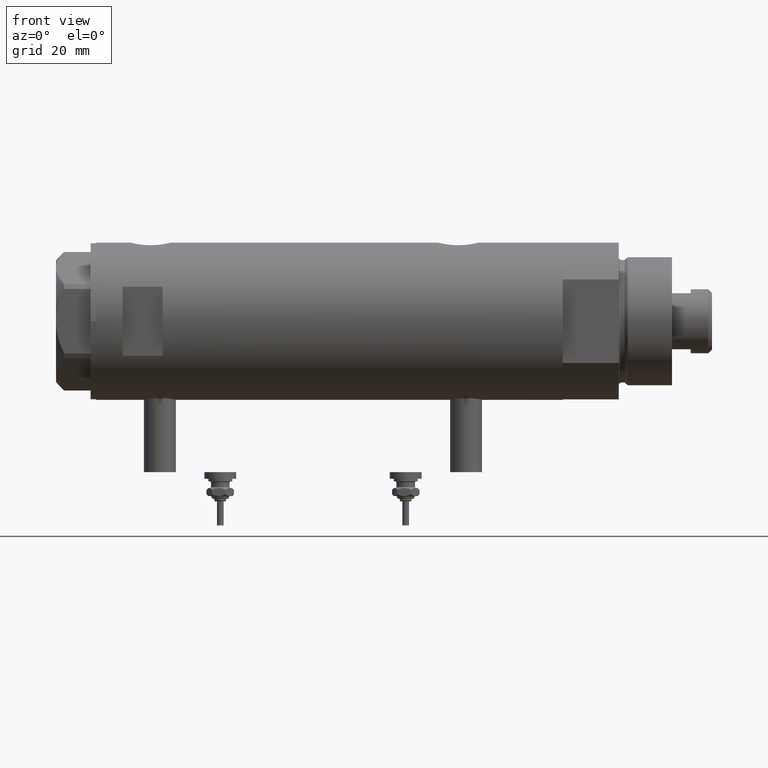
[diagram: clean part render]
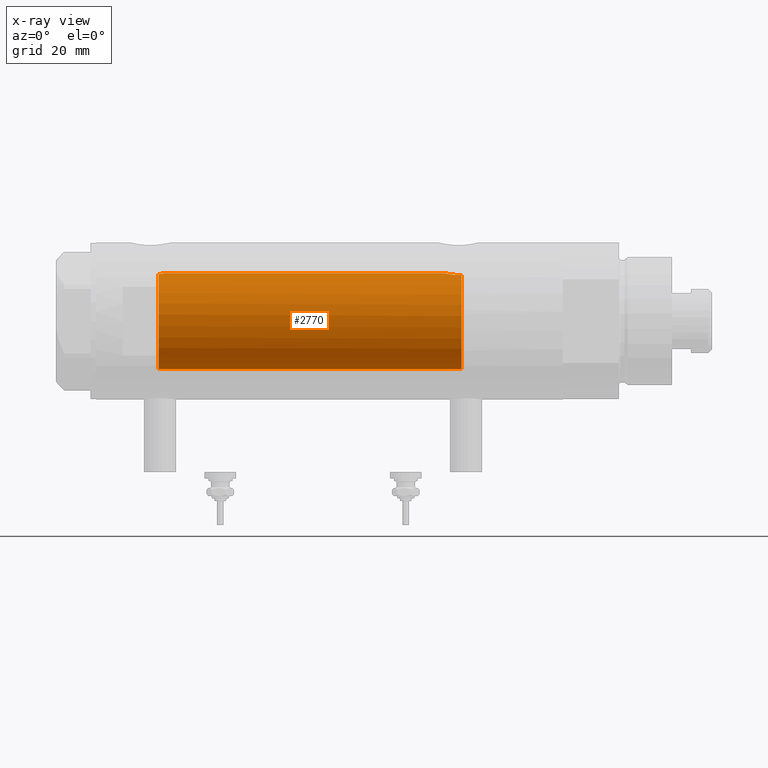
[diagram: x-ray — body ghosted, one internal face saturated and labeled with its STEP entity id]
A machine part, front view, then the same camera in x-ray: the body is ghosted and one INTERNAL B-rep face — a face not visible from any outside direction — is saturated and labeled: STEP entity #2770.
In plain terms, the highlighted cylindrical surface (partial cylindrical patch) has radius 18 mm, axis along (1, 0, -0).
Its self-contained STEP definition (entity closure, byte-faithful):
#33 = ORIENTED_EDGE ( 'NONE', *, *, #5619, .T. ) ;
#81 = AXIS2_PLACEMENT_3D ( 'NONE', #4233, #1489, #2428 ) ;
#200 = ORIENTED_EDGE ( 'NONE', *, *, #5802, .T. ) ;
#210 = DIRECTION ( 'NONE',  ( -0.000000000000000000, -0.000000000000000000, -1.000000000000000000 ) ) ;
#267 = CARTESIAN_POINT ( 'NONE',  ( 18.00000000000000000, 2.204364238465235428E-15, 87.59999999999998010 ) ) ;
#273 = CARTESIAN_POINT ( 'NONE',  ( 17.78501549309440222, -2.778062367771706231, -44.40196575702887571 ) ) ;
#297 = DIRECTION ( 'NONE',  ( -0.000000000000000000, -0.000000000000000000, -1.000000000000000000 ) ) ;
#300 = CARTESIAN_POINT ( 'NONE',  ( 17.97721305204034792, -0.9231636963562631637, -43.61982822371822266 ) ) ;
#327 = CARTESIAN_POINT ( 'NONE',  ( 18.00000000000000000, 5.958021437579254357E-16, -43.53499999999999659 ) ) ;
#372 = CARTESIAN_POINT ( 'NONE',  ( 17.58783030962034033, -3.829911878881809173, 64.09999999999999432 ) ) ;
#648 = CARTESIAN_POINT ( 'NONE',  ( 18.00000000000000000, 0.000000000000000000, 62.23499999999999233 ) ) ;
#721 = DIRECTION ( 'NONE',  ( 0.000000000000000000, 0.000000000000000000, 1.000000000000000000 ) ) ;
#722 = CARTESIAN_POINT ( 'NONE',  ( 17.32819690210315855, -4.871720223791778714, -48.13420793424216981 ) ) ;
#746 = VERTEX_POINT ( 'NONE', #4664 ) ;
#790 = CARTESIAN_POINT ( 'NONE',  ( 17.58783030962034033, -3.829911878881809173, 64.09999999999999432 ) ) ;
#807 = CARTESIAN_POINT ( 'NONE',  ( 17.41145422212636618, -4.568075757751900667, -46.68573299053986148 ) ) ;
#821 = CARTESIAN_POINT ( 'NONE',  ( 17.94467453319816030, -1.455166008437397629, 62.44318072553842569 ) ) ;
#840 = CARTESIAN_POINT ( 'NONE',  ( 17.99999999999999645, -0.1843597763241263676, -43.53499999999998948 ) ) ;
#1105 = ORIENTED_EDGE ( 'NONE', *, *, #1863, .T. ) ;
#1109 = ORIENTED_EDGE ( 'NONE', *, *, #4881, .F. ) ;
#1147 = B_SPLINE_CURVE_WITH_KNOTS ( 'NONE', 3,
 ( #2157, #5813, #3067, #722, #3570, #3520, #807, #4825, #3121, #5369, #1707, #5760, #273, #4860, #1259, #3036, #2103, #300, #4942, #5395, #840, #327 ),
 .UNSPECIFIED., .F., .F.,
 ( 4, 2, 2, 2, 2, 2, 2, 2, 2, 2, 4 ),
 ( 0.006434066725458738659, 0.007540005695425722881, 0.008645944665392707104, 0.009751883635359691327, 0.01085782260532667555, 0.01196376157529365977, 0.01251673106027715102, 0.01306970054526064226, 0.01417563951522762475, 0.01472860900021111773, 0.01528157848519461244 ),
 .UNSPECIFIED. ) ;
#1259 = CARTESIAN_POINT ( 'NONE',  ( 17.85233710017094566, -2.306965814323738595, -44.11276266371618249 ) ) ;
#1268 = CARTESIAN_POINT ( 'NONE',  ( 18.00000000000000355, -0.3730735969061040325, 62.23499999999998522 ) ) ;
#1298 = CARTESIAN_POINT ( 'NONE',  ( 17.91197612045793619, -1.808534151376000265, 62.56883769349537516 ) ) ;
#1489 = DIRECTION ( 'NONE',  ( 0.000000000000000000, 0.000000000000000000, -1.000000000000000000 ) ) ;
#1548 = CARTESIAN_POINT ( 'NONE',  ( -18.00000000000000000, 0.000000000000000000, -49.60000000000000853 ) ) ;
#1585 = DIRECTION ( 'NONE',  ( -1.000000000000000000, 0.000000000000000000, 0.000000000000000000 ) ) ;
#1608 = VERTEX_POINT ( 'NONE', #3180 ) ;
#1639 = ORIENTED_EDGE ( 'NONE', *, *, #3935, .F. ) ;
#1707 = CARTESIAN_POINT ( 'NONE',  ( 17.68752450041759516, -3.351772203450730458, -44.85493447381011833 ) ) ;
#1863 = EDGE_CURVE ( 'NONE', #746, #4908, #5886, .T. ) ;
#1999 = B_SPLINE_CURVE_WITH_KNOTS ( 'NONE', 3,
 ( #4895, #1268, #4922, #821, #1298, #3132, #2701, #2644, #5795, #790 ),
 .UNSPECIFIED., .F., .F.,
 ( 4, 2, 2, 2, 4 ),
 ( 0.000000000000000000, 0.001102956581910070682, 0.002205913163820141798, 0.003308869745730213564, 0.004411826327640285331 ),
 .UNSPECIFIED. ) ;
#2100 = VECTOR ( 'NONE', #297, 1000.000000000000000 ) ;
#2103 = CARTESIAN_POINT ( 'NONE',  ( 17.94411621822183633, -1.462318180775788568, -43.74532018047459303 ) ) ;
#2157 = CARTESIAN_POINT ( 'NONE',  ( 17.37157951943345680, -4.714681855650495912, -49.60000000000000142 ) ) ;
#2221 = CARTESIAN_POINT ( 'NONE',  ( 18.00000000000000000, 5.958021437579254357E-16, -43.53499999999999659 ) ) ;
#2428 = DIRECTION ( 'NONE',  ( -1.000000000000000000, 0.000000000000000000, 0.000000000000000000 ) ) ;
#2432 = VERTEX_POINT ( 'NONE', #648 ) ;
#2644 = CARTESIAN_POINT ( 'NONE',  ( 17.68806959355791619, -3.349106256179494423, 63.55213344176306833 ) ) ;
#2701 = CARTESIAN_POINT ( 'NONE',  ( 17.78689333688353358, -2.776822659814067507, 63.08837617090291872 ) ) ;
#2770 = ADVANCED_FACE ( 'NONE', ( #2891 ), #4300, .F. ) ;
#2862 = LINE ( 'NONE', #3791, #4663 ) ;
#2891 = FACE_OUTER_BOUND ( 'NONE', #5110, .T. ) ;
#2970 = EDGE_CURVE ( 'NONE', #1608, #4139, #1147, .T. ) ;
#3036 = CARTESIAN_POINT ( 'NONE',  ( 17.91207243579358632, -1.808254927071297313, -43.86838658940776980 ) ) ;
#3067 = CARTESIAN_POINT ( 'NONE',  ( 17.33258131920085177, -4.856098292894137636, -48.87181853595665615 ) ) ;
#3121 = CARTESIAN_POINT ( 'NONE',  ( 17.53680980608543649, -4.063678955652867408, -45.70014584461345919 ) ) ;
#3132 = CARTESIAN_POINT ( 'NONE',  ( 17.83332390923721533, -2.466220319593701138, 62.89048875048365517 ) ) ;
#3169 = CARTESIAN_POINT ( 'NONE',  ( 0.000000000000000000, 0.000000000000000000, 64.09999999999999432 ) ) ;
#3180 = CARTESIAN_POINT ( 'NONE',  ( 17.37157951943345680, -4.714681855650495912, -49.60000000000000142 ) ) ;
#3216 = VERTEX_POINT ( 'NONE', #1548 ) ;
#3306 = DIRECTION ( 'NONE',  ( -0.000000000000000000, -0.000000000000000000, -1.000000000000000000 ) ) ;
#3520 = CARTESIAN_POINT ( 'NONE',  ( 17.37991340314490785, -4.684530256828848493, -47.03638461192320364 ) ) ;
#3570 = CARTESIAN_POINT ( 'NONE',  ( 17.33821808943283216, -4.836569767017236288, -47.75823404381377202 ) ) ;
#3791 = CARTESIAN_POINT ( 'NONE',  ( -18.00000000000000000, 0.000000000000000000, 87.59999999999998010 ) ) ;
#3877 = CARTESIAN_POINT ( 'NONE',  ( 0.000000000000000000, 0.000000000000000000, 87.59999999999998010 ) ) ;
#3935 = EDGE_CURVE ( 'NONE', #746, #3216, #2862, .T. ) ;
#4110 = ORIENTED_EDGE ( 'NONE', *, *, #2970, .F. ) ;
#4139 = VERTEX_POINT ( 'NONE', #2221 ) ;
#4233 = CARTESIAN_POINT ( 'NONE',  ( 0.000000000000000000, 0.000000000000000000, -49.60000000000000853 ) ) ;
#4300 = CYLINDRICAL_SURFACE ( 'NONE', #4373, 18.00000000000000000 ) ;
#4365 = AXIS2_PLACEMENT_3D ( 'NONE', #3169, #721, #5449 ) ;
#4373 = AXIS2_PLACEMENT_3D ( 'NONE', #3877, #3306, #1585 ) ;
#4411 = LINE ( 'NONE', #267, #2100 ) ;
#4663 = VECTOR ( 'NONE', #210, 1000.000000000000000 ) ;
#4664 = CARTESIAN_POINT ( 'NONE',  ( -18.00000000000000000, 0.000000000000000000, 64.09999999999999432 ) ) ;
#4825 = CARTESIAN_POINT ( 'NONE',  ( 17.49057517990651078, -4.255095079290335924, -46.01249222525177629 ) ) ;
#4860 = CARTESIAN_POINT ( 'NONE',  ( 17.83055549281852237, -2.468946622824478077, -44.20402443991358865 ) ) ;
#4881 = EDGE_CURVE ( 'NONE', #2432, #4908, #1999, .T. ) ;
#4895 = CARTESIAN_POINT ( 'NONE',  ( 18.00000000000000000, 0.000000000000000000, 62.23499999999999233 ) ) ;
#4908 = VERTEX_POINT ( 'NONE', #372 ) ;
#4922 = CARTESIAN_POINT ( 'NONE',  ( 17.98842269988416831, -0.7385803848020507933, 62.27734794098787319 ) ) ;
#4942 = CARTESIAN_POINT ( 'NONE',  ( 17.98578085412773220, -0.7388632979187831351, -43.58783263922211404 ) ) ;
#5110 = EDGE_LOOP ( 'NONE', ( #1109, #200, #4110, #33, #1639, #1105 ) ) ;
#5369 = CARTESIAN_POINT ( 'NONE',  ( 17.63516507807922906, -3.613050995810182631, -45.12150009659158201 ) ) ;
#5395 = CARTESIAN_POINT ( 'NONE',  ( 17.99716838826709520, -0.3690012331666944201, -43.54544422515623836 ) ) ;
#5449 = DIRECTION ( 'NONE',  ( 1.000000000000000000, 0.000000000000000000, 0.000000000000000000 ) ) ;
#5619 = EDGE_CURVE ( 'NONE', #1608, #3216, #5741, .T. ) ;
#5741 = CIRCLE ( 'NONE', #81, 18.00000000000000000 ) ;
#5760 = CARTESIAN_POINT ( 'NONE',  ( 17.76113839466168187, -2.926207082530021264, -44.50911996042638208 ) ) ;
#5795 = CARTESIAN_POINT ( 'NONE',  ( 17.63693340989345515, -3.604419224588179649, 63.81212766824007332 ) ) ;
#5802 = EDGE_CURVE ( 'NONE', #2432, #4139, #4411, .T. ) ;
#5813 = CARTESIAN_POINT ( 'NONE',  ( 17.34665145232710515, -4.806531086046565981, -49.23913341666350618 ) ) ;
#5886 = CIRCLE ( 'NONE', #4365, 18.00000000000000000 ) ;